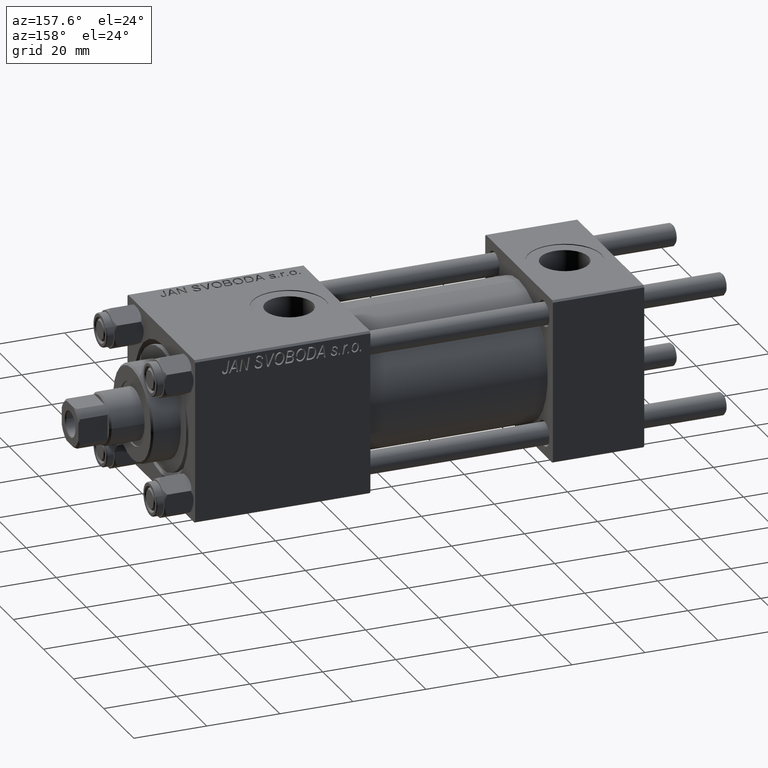
[diagram: clean part render]
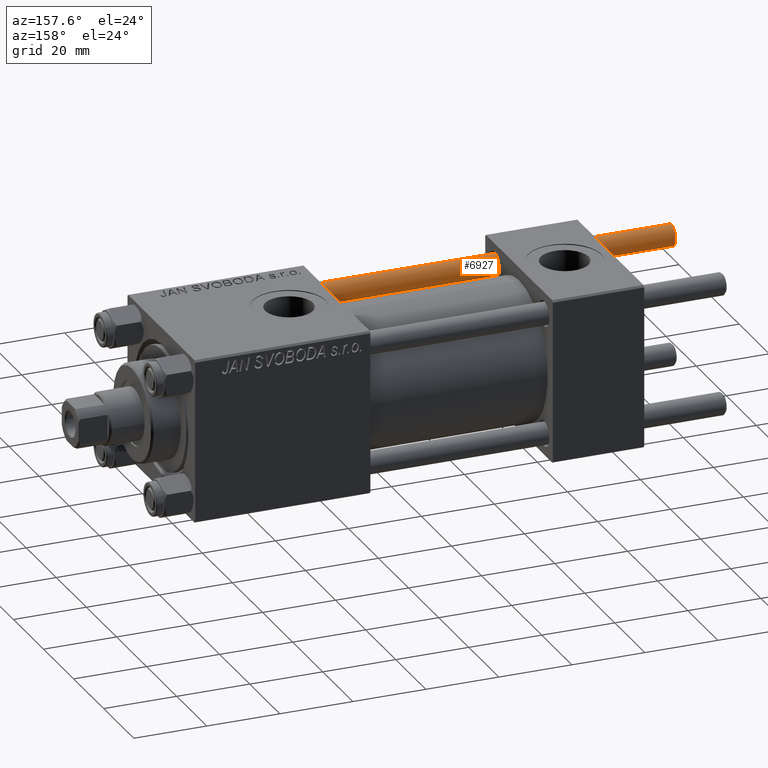
[diagram: same view with one face highlighted and labeled with its STEP entity id]
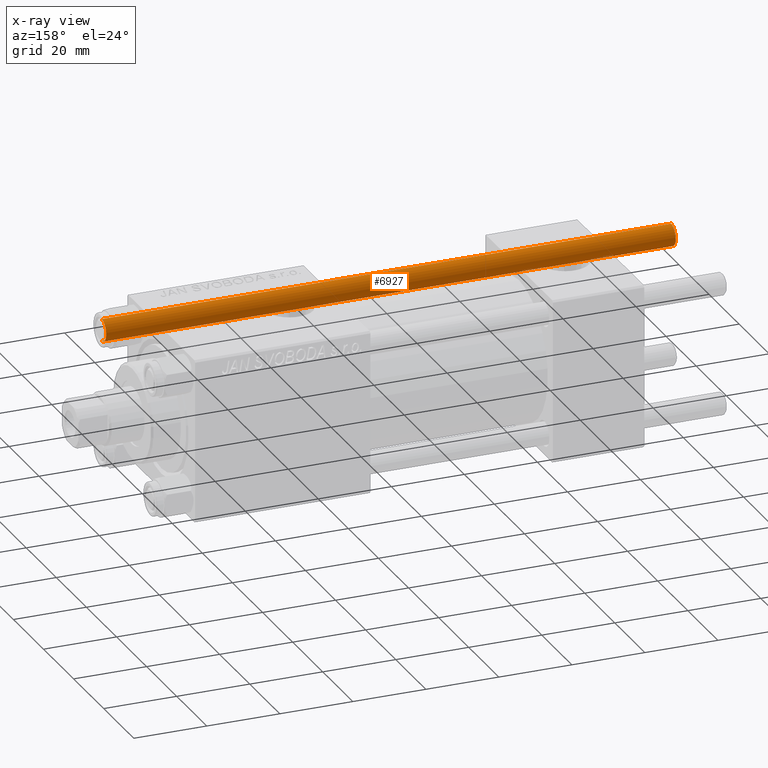
[diagram: x-ray of the same camera — body ghosted, the highlighted face saturated]
A machine part, auxiliary view. The second image highlights one B-rep face of the part: STEP entity #6927.
The next image is the same camera in x-ray: the body ghosted, the highlighted face saturated — about 1% of this face is hidden behind the body in this view.
In plain terms, the highlighted cylindrical surface (edge-blend (fillet) strip) has radius 3 mm, axis along (1, -0, 0).
Its self-contained STEP definition (entity closure, byte-faithful):
#1481 = ORIENTED_EDGE ( 'NONE', *, *, #18535, .F. ) ;
#2549 = EDGE_CURVE ( 'NONE', #15577, #41036, #9754, .T. ) ;
#6927 = ADVANCED_FACE ( 'NONE', ( #8067 ), #28535, .T. ) ;
#7304 = AXIS2_PLACEMENT_3D ( 'NONE', #10666, #18790, #14860 ) ;
#7784 = CARTESIAN_POINT ( 'NONE',  ( 3.000000000000000444, 3.673940397442060361E-16, 0.4999999999999726885 ) ) ;
#8067 = FACE_OUTER_BOUND ( 'NONE', #11093, .T. ) ;
#8466 = LINE ( 'NONE', #20792, #22467 ) ;
#9754 = CIRCLE ( 'NONE', #13134, 3.000000000000000444 ) ;
#10666 = CARTESIAN_POINT ( 'NONE',  ( 0.000000000000000000, 0.000000000000000000, 0.4999999999999726885 ) ) ;
#11093 = EDGE_LOOP ( 'NONE', ( #1481, #21923, #18206, #13002 ) ) ;
#13002 = ORIENTED_EDGE ( 'NONE', *, *, #16237, .T. ) ;
#13134 = AXIS2_PLACEMENT_3D ( 'NONE', #17081, #44912, #49382 ) ;
#14860 = DIRECTION ( 'NONE',  ( 1.000000000000000000, 0.000000000000000000, 0.000000000000000000 ) ) ;
#15577 = VERTEX_POINT ( 'NONE', #16076 ) ;
#16076 = CARTESIAN_POINT ( 'NONE',  ( 3.000000000000000444, 3.673940397442060361E-16, 156.5000000000000284 ) ) ;
#16237 = EDGE_CURVE ( 'NONE', #27938, #44272, #24092, .T. ) ;
#16454 = CARTESIAN_POINT ( 'NONE',  ( 0.000000000000000000, 0.000000000000000000, 157.0000000000000000 ) ) ;
#17081 = CARTESIAN_POINT ( 'NONE',  ( 0.000000000000000000, 0.000000000000000000, 156.5000000000000284 ) ) ;
#17110 = LINE ( 'NONE', #17382, #21092 ) ;
#17382 = CARTESIAN_POINT ( 'NONE',  ( -3.000000000000000444, 0.000000000000000000, 157.0000000000000000 ) ) ;
#18206 = ORIENTED_EDGE ( 'NONE', *, *, #31693, .T. ) ;
#18535 = EDGE_CURVE ( 'NONE', #15577, #44272, #8466, .T. ) ;
#18790 = DIRECTION ( 'NONE',  ( -0.000000000000000000, -0.000000000000000000, 1.000000000000000000 ) ) ;
#20792 = CARTESIAN_POINT ( 'NONE',  ( 3.000000000000000444, 3.673940397442060361E-16, 157.0000000000000000 ) ) ;
#21058 = DIRECTION ( 'NONE',  ( -0.000000000000000000, -0.000000000000000000, -1.000000000000000000 ) ) ;
#21092 = VECTOR ( 'NONE', #21058, 1000.000000000000000 ) ;
#21168 = DIRECTION ( 'NONE',  ( -0.000000000000000000, -0.000000000000000000, -1.000000000000000000 ) ) ;
#21923 = ORIENTED_EDGE ( 'NONE', *, *, #2549, .T. ) ;
#22467 = VECTOR ( 'NONE', #32610, 1000.000000000000000 ) ;
#24092 = CIRCLE ( 'NONE', #7304, 3.000000000000000444 ) ;
#27938 = VERTEX_POINT ( 'NONE', #33380 ) ;
#28535 = CYLINDRICAL_SURFACE ( 'NONE', #31399, 3.000000000000000444 ) ;
#28787 = DIRECTION ( 'NONE',  ( -1.000000000000000000, 0.000000000000000000, 0.000000000000000000 ) ) ;
#31024 = CARTESIAN_POINT ( 'NONE',  ( -3.000000000000000444, 0.000000000000000000, 156.5000000000000284 ) ) ;
#31399 = AXIS2_PLACEMENT_3D ( 'NONE', #16454, #21168, #28787 ) ;
#31693 = EDGE_CURVE ( 'NONE', #41036, #27938, #17110, .T. ) ;
#32610 = DIRECTION ( 'NONE',  ( -0.000000000000000000, -0.000000000000000000, -1.000000000000000000 ) ) ;
#33380 = CARTESIAN_POINT ( 'NONE',  ( -3.000000000000000444, 0.000000000000000000, 0.4999999999999726885 ) ) ;
#41036 = VERTEX_POINT ( 'NONE', #31024 ) ;
#44272 = VERTEX_POINT ( 'NONE', #7784 ) ;
#44912 = DIRECTION ( 'NONE',  ( 0.000000000000000000, 0.000000000000000000, -1.000000000000000000 ) ) ;
#49382 = DIRECTION ( 'NONE',  ( 1.000000000000000000, 0.000000000000000000, 0.000000000000000000 ) ) ;